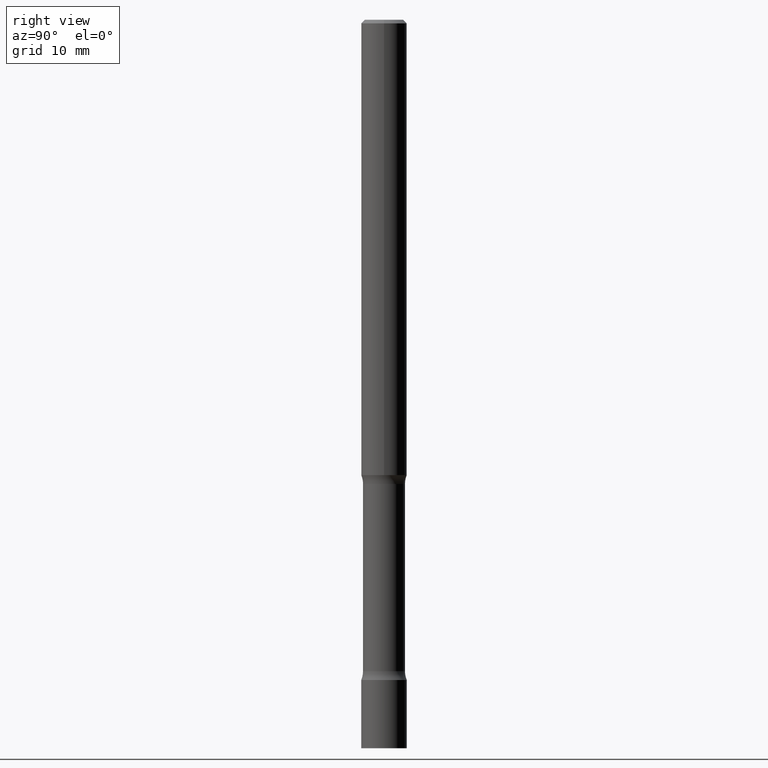
[diagram: clean part render]
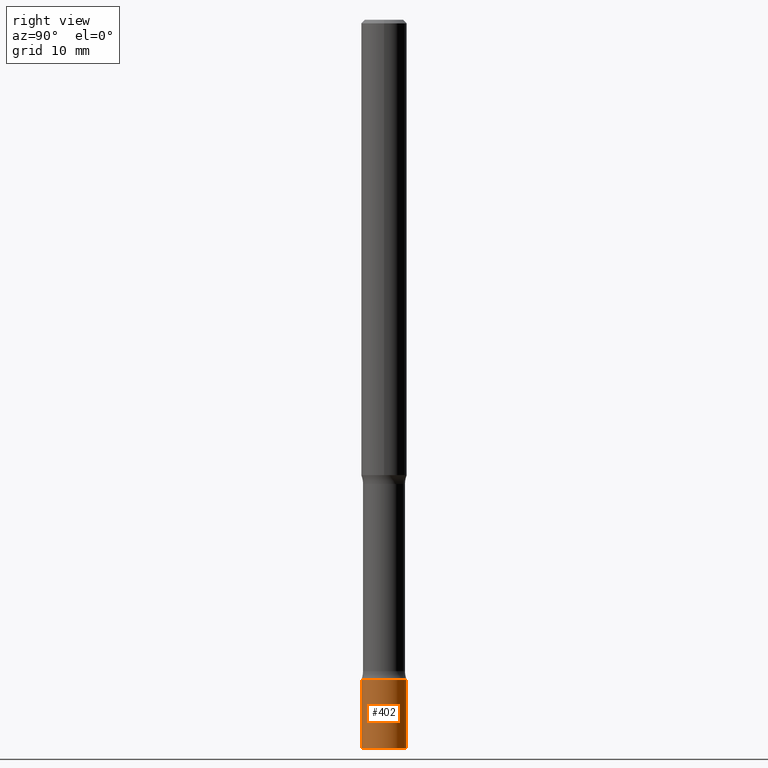
[diagram: same view with one face highlighted and labeled with its STEP entity id]
A machine part, right view. The second image highlights one B-rep face of the part: STEP entity #402.
In plain terms, the highlighted cylindrical surface (edge-blend (fillet) strip) has radius 3.175 mm, axis along (-0, 0, 1).
Its self-contained STEP definition (entity closure, byte-faithful):
#33 = CARTESIAN_POINT ( 'NONE',  ( 8.881784197002228539E-16, 0.1249999999999873157, -3.625000000000000444 ) ) ;
#39 = VERTEX_POINT ( 'NONE', #136 ) ;
#49 = CARTESIAN_POINT ( 'NONE',  ( -8.728703347106943948E-16, -0.1250000000000126288, -3.624999999999999112 ) ) ;
#60 = LINE ( 'NONE', #288, #467 ) ;
#71 = AXIS2_PLACEMENT_3D ( 'NONE', #211, #419, #182 ) ;
#88 = CIRCLE ( 'NONE', #441, 0.1250000000000000000 ) ;
#91 = EDGE_CURVE ( 'NONE', #39, #278, #60, .T. ) ;
#123 = ORIENTED_EDGE ( 'NONE', *, *, #506, .F. ) ;
#126 = ORIENTED_EDGE ( 'NONE', *, *, #428, .T. ) ;
#135 = AXIS2_PLACEMENT_3D ( 'NONE', #289, #438, #451 ) ;
#136 = CARTESIAN_POINT ( 'NONE',  ( -8.728703347106854215E-16, -0.1250000000000139611, -3.999999999999999556 ) ) ;
#169 = CYLINDRICAL_SURFACE ( 'NONE', #135, 0.1250000000000000000 ) ;
#174 = LINE ( 'NONE', #259, #468 ) ;
#182 = DIRECTION ( 'NONE',  ( -6.982962677686265922E-15, -1.000000000000000000, 4.370956789862821938E-15 ) ) ;
#186 = DIRECTION ( 'NONE',  ( -6.982962677686265922E-15, -1.000000000000000000, 4.370956789862821150E-15 ) ) ;
#211 = CARTESIAN_POINT ( 'NONE',  ( 8.865249810143920344E-29, -1.265601067387578743E-14, -3.624999999999999556 ) ) ;
#215 = DIRECTION ( 'NONE',  ( -2.445586154522460205E-29, 3.491313289345044808E-15, 1.000000000000000000 ) ) ;
#221 = CARTESIAN_POINT ( 'NONE',  ( 8.881784197002183179E-16, 0.1249999999999860251, -4.000000000000000888 ) ) ;
#228 = ORIENTED_EDGE ( 'NONE', *, *, #238, .T. ) ;
#234 = EDGE_LOOP ( 'NONE', ( #228, #126, #123, #360 ) ) ;
#238 = EDGE_CURVE ( 'NONE', #39, #478, #88, .T. ) ;
#259 = CARTESIAN_POINT ( 'NONE',  ( 8.881784197001251337E-16, 0.1250000000000000000, -4.364141611681306010E-16 ) ) ;
#278 = VERTEX_POINT ( 'NONE', #49 ) ;
#288 = CARTESIAN_POINT ( 'NONE',  ( -8.728703347107832402E-16, -0.1250000000000000000, 4.364141611681306010E-16 ) ) ;
#289 = CARTESIAN_POINT ( 'NONE',  ( 0.000000000000000000, 0.000000000000000000, 0.000000000000000000 ) ) ;
#296 = DIRECTION ( 'NONE',  ( -2.445586154522460205E-29, 3.491313289345044808E-15, 1.000000000000000000 ) ) ;
#305 = DIRECTION ( 'NONE',  ( -2.445586154522460485E-29, 3.491313289345045202E-15, 1.000000000000000000 ) ) ;
#352 = CIRCLE ( 'NONE', #71, 0.1249999999999999861 ) ;
#360 = ORIENTED_EDGE ( 'NONE', *, *, #91, .F. ) ;
#367 = FACE_OUTER_BOUND ( 'NONE', #234, .T. ) ;
#385 = CARTESIAN_POINT ( 'NONE',  ( 9.782344618089841940E-29, -1.396525315738017923E-14, -4.000000000000000000 ) ) ;
#402 = ADVANCED_FACE ( 'NONE', ( #367 ), #169, .T. ) ;
#419 = DIRECTION ( 'NONE',  ( -2.445586154522460485E-29, 3.491313289345045202E-15, 1.000000000000000000 ) ) ;
#428 = EDGE_CURVE ( 'NONE', #478, #434, #174, .T. ) ;
#434 = VERTEX_POINT ( 'NONE', #33 ) ;
#438 = DIRECTION ( 'NONE',  ( -2.445586154522460485E-29, 3.491313289345045202E-15, 1.000000000000000000 ) ) ;
#441 = AXIS2_PLACEMENT_3D ( 'NONE', #385, #305, #186 ) ;
#451 = DIRECTION ( 'NONE',  ( -6.982962677686265922E-15, -1.000000000000000000, 3.491313289345044808E-15 ) ) ;
#467 = VECTOR ( 'NONE', #215, 39.37007874015748143 ) ;
#468 = VECTOR ( 'NONE', #296, 39.37007874015748143 ) ;
#478 = VERTEX_POINT ( 'NONE', #221 ) ;
#506 = EDGE_CURVE ( 'NONE', #278, #434, #352, .T. ) ;